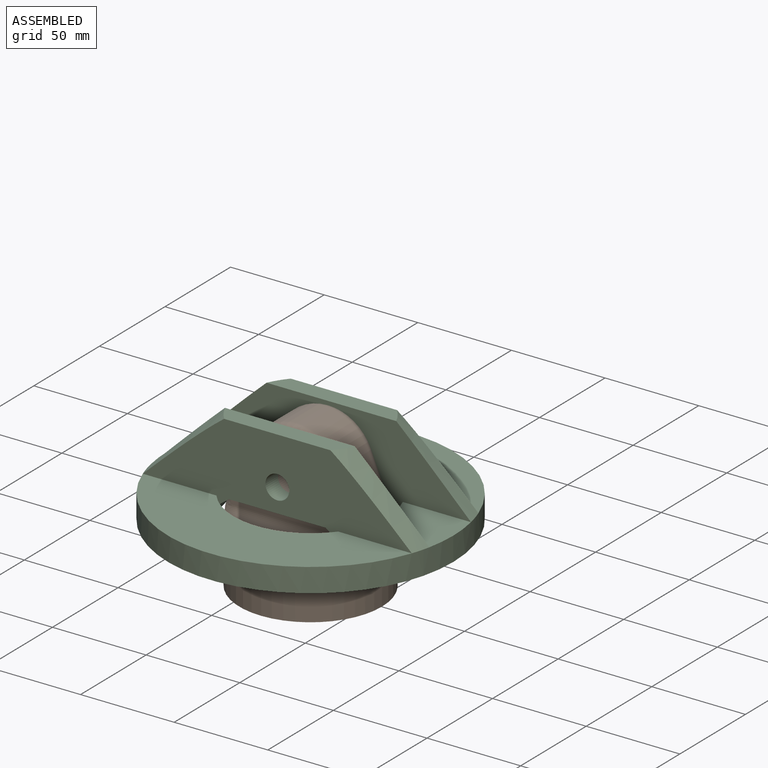
[diagram: assembled view]
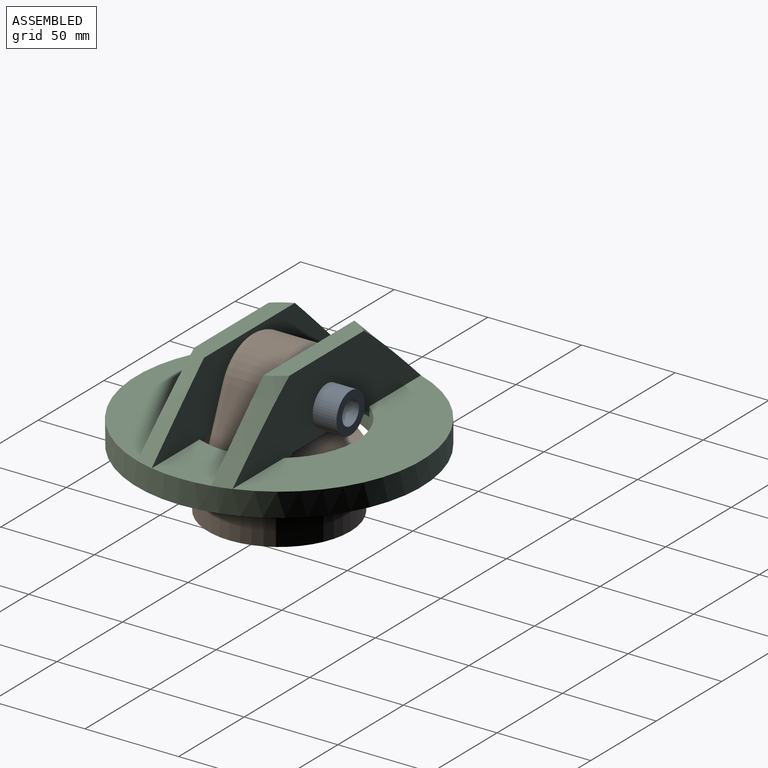
[diagram: assembled view, second angle]
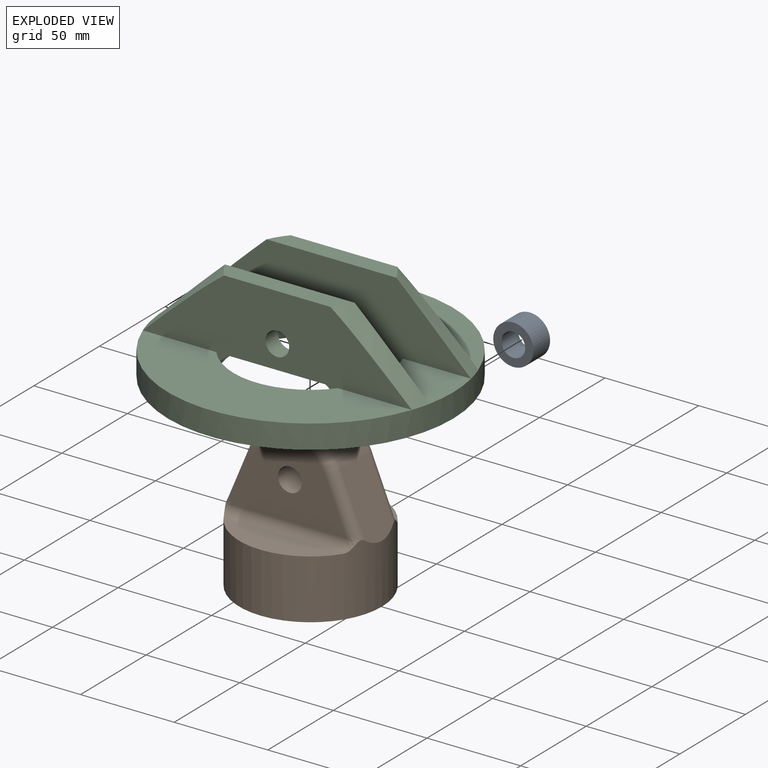
[diagram: exploded view]
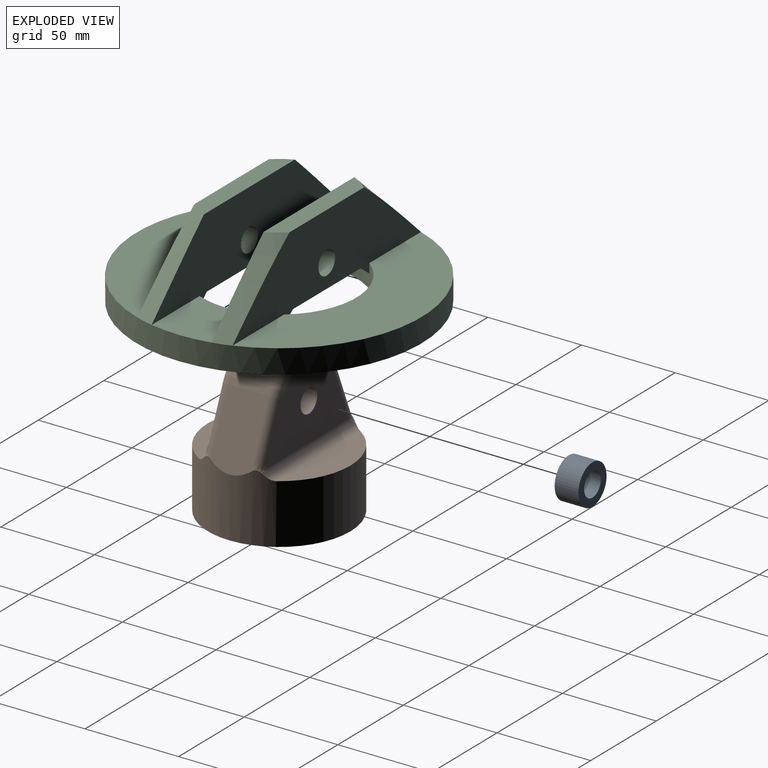
[diagram: exploded view, second angle]
ASSEMBLY  parts=3 mates=2
PART A: 4 faces, bbox 21.5x12.7x21.5 mm
  f0: cylinder r=6.35mm len=12.7mm, axis (0,1,0), area 506.7mm2, adj f2,f3
  f1: cylinder r=10.73mm len=21.46mm, axis (0,1,0), area 856.3mm2, adj f2,f3
  f2: plane 21.46x21.46mm, normal (0,-1,0), area 235.1mm2, adj f0,f1
  f3: plane 21.46x21.46mm, normal (0,1,0), area 235.1mm2, adj f0,f1
PART B: 22 faces, bbox 76.8x76.2x84.6 mm
  f0: cylinder r=38.1mm len=76.2mm, axis (0,0,-1), area 7745mm2, adj f2,f3,f4,f7,f9,f10,f11,f12
  f1: plane 60.96x40.64mm, normal (0,-1,0), area 1597.6mm2, adj f6,f10,f13,f14,f15
  f2: plane 76.2x76.2mm, normal (0,0,-1), area 4560.4mm2, adj f0
  f3: plane 63.64x17.15mm, normal (0,0,1), area 768mm2, adj f0,f10
  f4: plane 63.64x17.15mm, normal (0,0,1), area 768mm2, adj f0,f11
  f5: plane 60.96x40.64mm, normal (0,1,0), area 1597.6mm2, adj f6,f11,f18,f19,f20
  f6: cylinder r=6.35mm len=31.75mm, axis (0,-1,0), area 1266.8mm2, adj f1,f5
  f7: plane 35.17x22.48mm, normal (-0.92,0,0.38), area 794.7mm2, adj f0,f8,f12,f13,f17,f18
  f8: cylinder r=25.4mm len=46.89mm, axis (0,-1,0), area 1289.8mm2, adj f7,f9,f14,f19
  f9: plane 35.17x22.48mm, normal (0.92,0,0.38), area 794.7mm2, adj f0,f8,f15,f16,f20,f21
  f10: cylinder r=5.08mm len=67.47mm, axis (-1,0,0), area 517.1mm2, adj f0,f1,f3,f12,f16
  f11: cylinder r=5.08mm len=67.47mm, axis (1,0,0), area 517.1mm2, adj f0,f4,f5,f17,f21
  f12: bspline ~7.94x7.81mm, area 25.6mm2, adj f0,f7,f10,f13
  f13: cylinder r=5.08mm len=30.09mm, axis (0.38,0,0.92), area 243.2mm2, adj f1,f7,f12,f14
  f14: torus R=20.32mm, axis (0,1,0), area 442.1mm2, adj f1,f8,f13,f15
  f15: cylinder r=5.08mm len=30.09mm, axis (0.38,0,-0.92), area 243.2mm2, adj f1,f9,f14,f16
  f16: bspline ~7.94x7.81mm, area 25.6mm2, adj f0,f9,f10,f15
  f17: bspline ~7.94x7.81mm, area 25.6mm2, adj f0,f7,f11,f18
  f18: cylinder r=5.08mm len=30.09mm, axis (-0.38,0,-0.92), area 243.2mm2, adj f5,f7,f17,f19
  f19: torus R=20.32mm, axis (0,1,0), area 442.1mm2, adj f5,f8,f18,f20
  f20: cylinder r=5.08mm len=30.09mm, axis (-0.38,0,0.92), area 243.2mm2, adj f5,f9,f19,f21
  f21: bspline ~7.94x7.81mm, area 25.6mm2, adj f0,f9,f11,f20
PART C: 25 faces, bbox 152.8x152.8x51.2 mm
  f0: cylinder r=76.2mm len=152.4mm, axis (0,0,-1), area 6080.5mm2, adj f5,f7,f8,f12,f13,f21,f22,f23
  f1: plane 69.27x9.53mm, normal (0,0,1), area 606.9mm2, adj f9,f11,f21,f23
  f2: plane 65.06x9.53mm, normal (0,0,-1), area 562.8mm2, adj f10,f14,f18,f19
  f3: plane 65.06x9.53mm, normal (0,0,-1), area 562.8mm2, adj f9,f11,f17,f20
  f4: plane 69.27x9.53mm, normal (0,0,1), area 606.9mm2, adj f10,f14,f22,f24
  f5: plane 152.4x152.4mm, normal (0,0,-1), area 12889.4mm2, adj f0,f6
  f6: cylinder r=41.27mm len=82.55mm, axis (0,0,-1), area 3068.8mm2, adj f5,f7,f8,f9,f10,f11,f12,f13
  f7: plane 38.1x31.75mm, normal (0,0,1), area 1124.3mm2, adj f0,f6,f9,f10
  f8: plane 38.1x31.75mm, normal (0,0,1), area 1124.3mm2, adj f0,f6,f9,f10
  f9: plane 149.22x43.34mm, normal (0,-1,0), area 4077.3mm2, adj f1,f3,f6,f7,f8,f16,f17,f20
  f10: plane 149.22x43.34mm, normal (0,1,0), area 4077.3mm2, adj f2,f4,f6,f7,f8,f15,f18,f19
  f11: plane 144.04x43.53mm, normal (0,1,0), area 3783.1mm2, adj f1,f3,f6,f12,f16,f17,f20,f21
  f12: plane 143.68x50.8mm, normal (0,0,1), area 4602.3mm2, adj f0,f6,f11
  f13: plane 143.68x50.8mm, normal (0,0,1), area 4602.3mm2, adj f0,f6,f14
  f14: plane 144.04x43.53mm, normal (0,-1,0), area 3783.1mm2, adj f2,f4,f6,f13,f15,f18,f19,f22
  f15: cylinder r=6.35mm len=12.7mm, axis (0,-1,0), area 380mm2, adj f10,f14
  f16: cylinder r=6.35mm len=12.7mm, axis (0,-1,0), area 380mm2, adj f9,f11
  f17: cone r=36.2mm half-angle=45deg, axis (0,0,-1), area 82.2mm2, adj f3,f6,f9,f11
  f18: cone r=36.2mm half-angle=45deg, axis (0,0,-1), area 82.2mm2, adj f2,f6,f10,f14
  f19: cone r=36.2mm half-angle=45deg, axis (0,0,-1), area 82.2mm2, adj f2,f6,f10,f14
  f20: cone r=36.2mm half-angle=45deg, axis (0,0,-1), area 82.2mm2, adj f3,f6,f9,f11
  f21: cone r=38.1mm half-angle=45deg, axis (0,0,-1), area 558.2mm2, adj f0,f1,f9,f11
  f22: cone r=38.1mm half-angle=45deg, axis (0,0,-1), area 558.2mm2, adj f0,f4,f10,f14
  f23: cone r=38.1mm half-angle=45deg, axis (0,0,-1), area 558.2mm2, adj f0,f1,f9,f11
  f24: cone r=38.1mm half-angle=45deg, axis (0,0,-1), area 558.2mm2, adj f0,f4,f10,f14
PLACE A t=(22,-17.85,-26.18)mm
PLACE B t=(22,-55.95,-83.33)mm
PLACE C t=(22,-55.95,-51.58)mm
MATE revolute B.f6 <-> C.f15  axis (0,-1,0) through (22,-71.82,-26.18)mm
MATE fastened A.f0 <-> C.f15  axis (0,-1,0) through (22,-30.55,-26.18)mm
